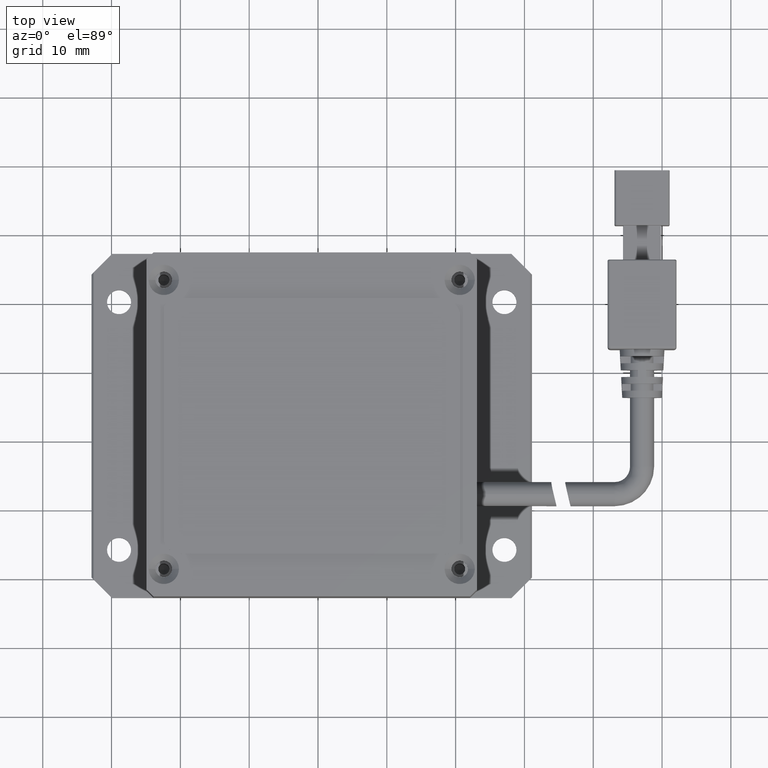
[diagram: clean part render]
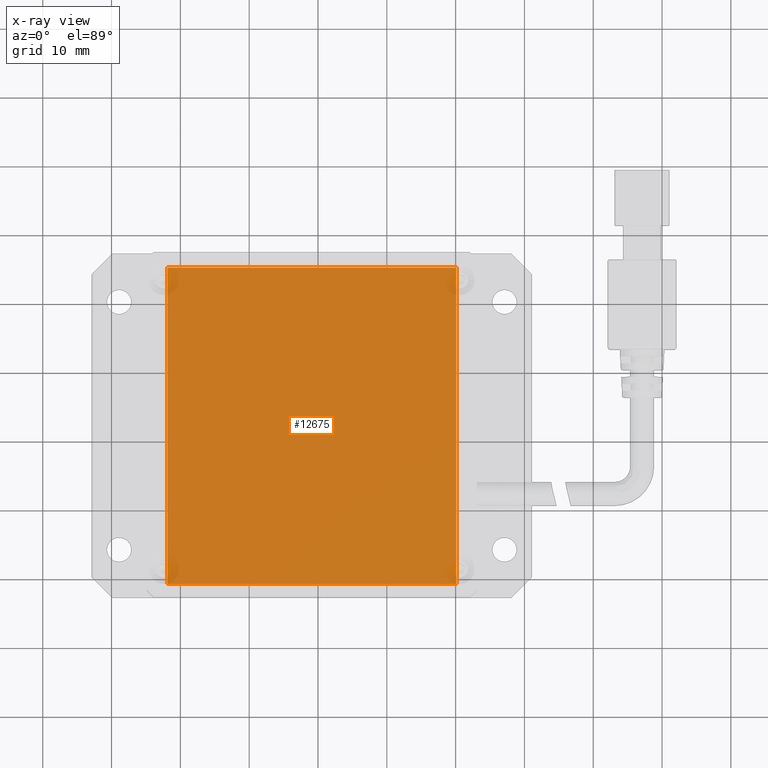
[diagram: x-ray — body ghosted, one internal face saturated and labeled with its STEP entity id]
A machine part, top view, then the same camera in x-ray: the body is ghosted and one INTERNAL B-rep face — a face not visible from any outside direction — is saturated and labeled: STEP entity #12675.
In plain terms, the highlighted planar face has unit normal (0, -0, 1).
Its self-contained STEP definition (entity closure, byte-faithful):
#609 = FACE_OUTER_BOUND ( 'NONE', #13407, .T. ) ;
#1741 = LINE ( 'NONE', #16345, #18095 ) ;
#1894 = EDGE_CURVE ( 'NONE', #20179, #15737, #1741, .T. ) ;
#2179 = DIRECTION ( 'NONE',  ( 1.000000000000000000, -0.0000000000000000000, -0.0000000000000000000 ) ) ;
#2297 = ORIENTED_EDGE ( 'NONE', *, *, #1894, .T. ) ;
#2430 = VECTOR ( 'NONE', #16919, 1000.000000000000000 ) ;
#2783 = VECTOR ( 'NONE', #14829, 1000.000000000000000 ) ;
#4582 = VERTEX_POINT ( 'NONE', #8848 ) ;
#5342 = CARTESIAN_POINT ( 'NONE',  ( -0.9068346697212632500, 2.290950744559034900, -1.630813539765796300E-011 ) ) ;
#5398 = CARTESIAN_POINT ( 'NONE',  ( 20.09316533027873300, -20.70904925544096300, -1.630813539765796300E-011 ) ) ;
#5893 = CARTESIAN_POINT ( 'NONE',  ( 20.09316533027873000, 25.29095074455903000, -1.630813539765796300E-011 ) ) ;
#6932 = DIRECTION ( 'NONE',  ( 0.0000000000000000000, 1.000000000000000000, 0.0000000000000000000 ) ) ;
#8530 = AXIS2_PLACEMENT_3D ( 'NONE', #5342, #16354, #6932 ) ;
#8848 = CARTESIAN_POINT ( 'NONE',  ( -21.90683466972126000, -20.70904925544096300, -1.630813539765796300E-011 ) ) ;
#8954 = CARTESIAN_POINT ( 'NONE',  ( 20.09316533027873300, 25.29095074455903000, -1.630813539765796300E-011 ) ) ;
#11055 = CARTESIAN_POINT ( 'NONE',  ( -21.90683466972126700, 25.29095074455903000, -1.630813539765796300E-011 ) ) ;
#12675 = ADVANCED_FACE ( 'NONE', ( #609 ), #19522, .F. ) ;
#12679 = VECTOR ( 'NONE', #14352, 1000.000000000000000 ) ;
#13407 = EDGE_LOOP ( 'NONE', ( #14419, #2297, #18094, #19933 ) ) ;
#14352 = DIRECTION ( 'NONE',  ( -1.508455196501571900E-016, 1.000000000000000000, 0.0000000000000000000 ) ) ;
#14419 = ORIENTED_EDGE ( 'NONE', *, *, #16554, .T. ) ;
#14541 = LINE ( 'NONE', #5893, #2430 ) ;
#14666 = EDGE_CURVE ( 'NONE', #15737, #17690, #14541, .T. ) ;
#14829 = DIRECTION ( 'NONE',  ( -1.000000000000000000, 0.0000000000000000000, 0.0000000000000000000 ) ) ;
#15395 = LINE ( 'NONE', #5398, #2783 ) ;
#15737 = VERTEX_POINT ( 'NONE', #8954 ) ;
#16345 = CARTESIAN_POINT ( 'NONE',  ( 20.09316533027873000, 25.29095074455903000, -1.630813539765796300E-011 ) ) ;
#16354 = DIRECTION ( 'NONE',  ( 0.0000000000000000000, -0.0000000000000000000, 1.000000000000000000 ) ) ;
#16554 = EDGE_CURVE ( 'NONE', #4582, #20179, #16890, .T. ) ;
#16890 = LINE ( 'NONE', #17492, #12679 ) ;
#16919 = DIRECTION ( 'NONE',  ( 7.542275982507859600E-017, -1.000000000000000000, 0.0000000000000000000 ) ) ;
#17492 = CARTESIAN_POINT ( 'NONE',  ( -21.90683466972126700, 25.29095074455903000, -1.630813539765796300E-011 ) ) ;
#17690 = VERTEX_POINT ( 'NONE', #18986 ) ;
#18094 = ORIENTED_EDGE ( 'NONE', *, *, #14666, .T. ) ;
#18095 = VECTOR ( 'NONE', #2179, 1000.000000000000000 ) ;
#18986 = CARTESIAN_POINT ( 'NONE',  ( 20.09316533027873300, -20.70904925544096300, -1.630813539765796300E-011 ) ) ;
#19238 = EDGE_CURVE ( 'NONE', #17690, #4582, #15395, .T. ) ;
#19522 = PLANE ( 'NONE',  #8530 ) ;
#19933 = ORIENTED_EDGE ( 'NONE', *, *, #19238, .T. ) ;
#20179 = VERTEX_POINT ( 'NONE', #11055 ) ;